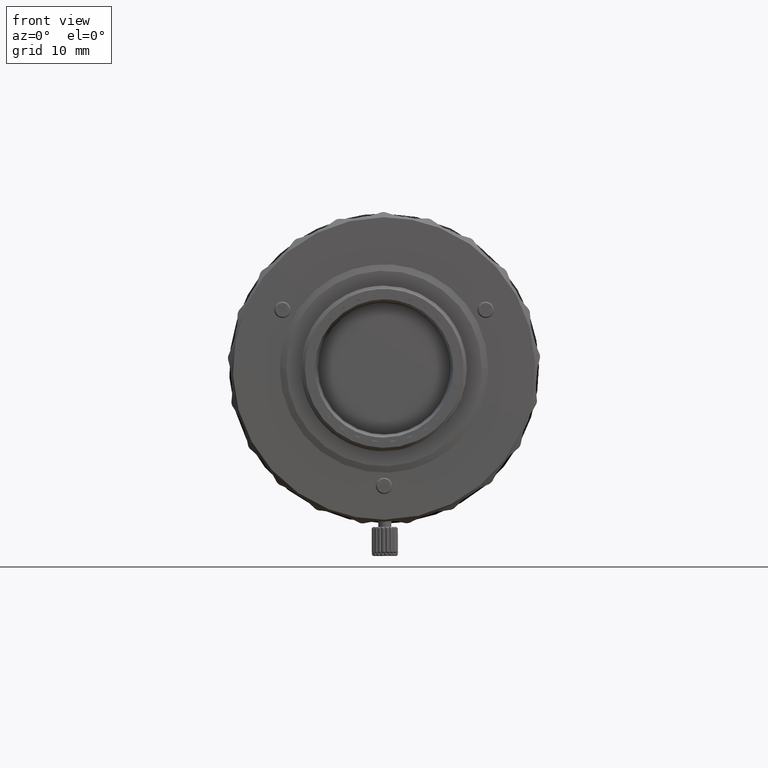
[diagram: clean part render]
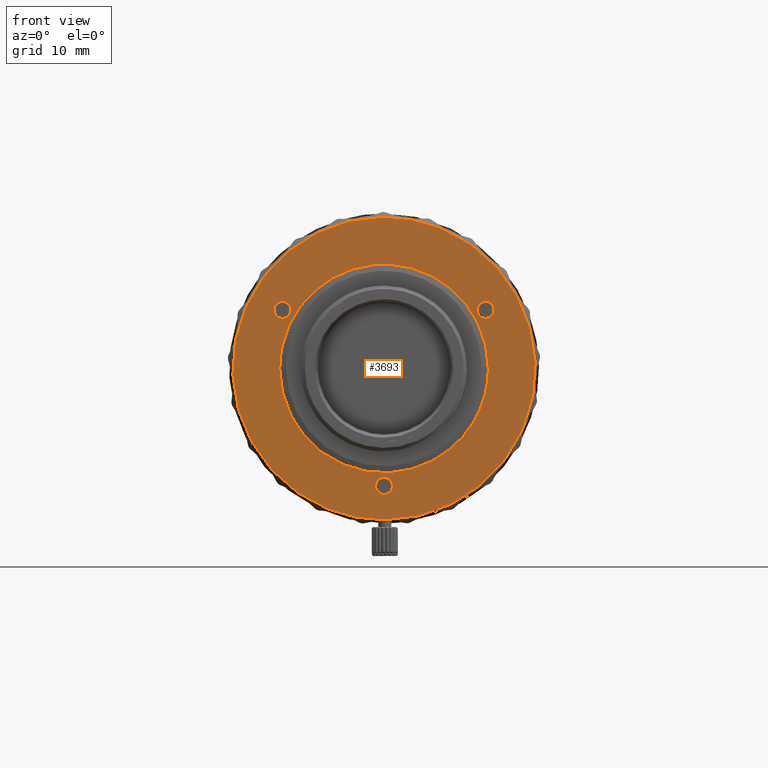
[diagram: same view with one face highlighted and labeled with its STEP entity id]
A machine part, front view. The second image highlights one B-rep face of the part: STEP entity #3693.
In plain terms, the highlighted face is a freeform B-spline surface patch.
Its self-contained STEP definition (entity closure, byte-faithful):
#194 = CARTESIAN_POINT ( 'NONE',  ( -15.58845726276480192, 4.185000000000000497, 7.700000004315920243 ) ) ;
#382 = CARTESIAN_POINT ( 'NONE',  ( 4.835216520487320207E-09, 4.185000000000000497, -19.29999999482794948 ) ) ;
#471 = CARTESIAN_POINT ( 'NONE',  ( 14.15277818605966509, 4.185000000000001386, -18.44581871180172428 ) ) ;
#1276 = CARTESIAN_POINT ( 'NONE',  ( -16.00000000000000000, 4.185000000000000497, 9.372583003554694869 ) ) ;
#1598 = CARTESIAN_POINT ( 'NONE',  ( 4.401863451953290030E-09, 4.185000000000000497, -16.69999999851004802 ) ) ;
#2475 = CARTESIAN_POINT ( 'NONE',  ( 3.281651303531619642E-09, 4.184999999999994280, 16.00000000000000000 ) ) ;
#2510 = CARTESIAN_POINT ( 'NONE',  ( -22.45774806659916223, 4.185000000000000497, -6.016552919795906895 ) ) ;
#2880 = CARTESIAN_POINT ( 'NONE',  ( 16.00000000384469701, 4.184999999999988063, 9.372582996991393856 ) ) ;
#2911 = CARTESIAN_POINT ( 'NONE',  ( -11.62568062406474034, 4.185000000000001386, 20.13437130025090127 ) ) ;
#3014 = CARTESIAN_POINT ( 'NONE',  ( 16.34997963703881751, 4.185000000000000497, 7.700000000000000178 ) ) ;
#3588 = EDGE_LOOP ( 'NONE', ( #25069, #4205 ) ) ;
#3693 = ADVANCED_FACE ( 'NONE', ( #29678, #29268, #61553, #74169, #66849 ), #80915, .F. ) ;
#3808 = EDGE_CURVE ( 'NONE', #17836, #64542, #6191, .T. ) ;
#4001 = CARTESIAN_POINT ( 'NONE',  ( 20.85245753667071611, 4.185000000000001386, 10.28223584680454472 ) ) ;
#4143 = CARTESIAN_POINT ( 'NONE',  ( -20.85245752344366466, 4.185000000000001386, 10.28223580147236760 ) ) ;
#4205 = ORIENTED_EDGE ( 'NONE', *, *, #13009, .F. ) ;
#4360 = CARTESIAN_POINT ( 'NONE',  ( 1.299999999843812315, 4.185000000000000497, -17.23847763069454686 ) ) ;
#4410 = CARTESIAN_POINT ( 'NONE',  ( 10.28223580147237648, 4.185000000000001386, 20.85245752344366110 ) ) ;
#4480 = CARTESIAN_POINT ( 'NONE',  ( -15.58845726319815128, 4.185000000000000497, 10.30000000063380128 ) ) ;
#4894 =( BOUNDED_CURVE ( )  B_SPLINE_CURVE ( 3, ( #10407, #3014, #16521, #29189, #59442, #27964, #28366 ),
 .UNSPECIFIED., .F., .T. ) 
 B_SPLINE_CURVE_WITH_KNOTS ( ( 4, 3, 4 ),
 ( -3.141592653589795336, -1.570796326794897668, 0.000000000000000000 ),
 .UNSPECIFIED. ) 
 CURVE ( )  GEOMETRIC_REPRESENTATION_ITEM ( )  RATIONAL_B_SPLINE_CURVE ( ( 1.000000000000000000, 0.8047378540760217192, 0.8047378540760217192, 1.000000000000000000, 0.8047378540760217192, 0.8047378540760217192, 1.000000000000000000 ) ) 
 REPRESENTATION_ITEM ( '' )  );
#5331 = VERTEX_POINT ( 'NONE', #44253 ) ;
#6191 =( BOUNDED_CURVE ( )  B_SPLINE_CURVE ( 3, ( #7564, #43533, #32468, #194 ),
 .UNSPECIFIED., .F., .T. ) 
 B_SPLINE_CURVE_WITH_KNOTS ( ( 4, 4 ),
 ( -3.141592653589795336, 0.000000000000000000 ),
 .UNSPECIFIED. ) 
 CURVE ( )  GEOMETRIC_REPRESENTATION_ITEM ( )  RATIONAL_B_SPLINE_CURVE ( ( 1.000000000000000000, 0.3333333335299315525, 0.3333333335299315525, 1.000000000000000000 ) ) 
 REPRESENTATION_ITEM ( '' )  );
#6640 = CARTESIAN_POINT ( 'NONE',  ( -4.062566728592469547E-09, 4.185000000000000497, -23.19999999999550155 ) ) ;
#7208 = ORIENTED_EDGE ( 'NONE', *, *, #3808, .F. ) ;
#7564 = CARTESIAN_POINT ( 'NONE',  ( -15.58845726319815128, 4.185000000000000497, 10.30000000063380128 ) ) ;
#8472 =( BOUNDED_CURVE ( )  B_SPLINE_CURVE ( 3, ( #62874, #18338, #68173, #37114 ),
 .UNSPECIFIED., .F., .T. ) 
 B_SPLINE_CURVE_WITH_KNOTS ( ( 4, 4 ),
 ( -3.141592653589795336, 0.000000000000000000 ),
 .UNSPECIFIED. ) 
 CURVE ( )  GEOMETRIC_REPRESENTATION_ITEM ( )  RATIONAL_B_SPLINE_CURVE ( ( 1.000000000000000000, 0.3333333335299315525, 0.3333333335299315525, 1.000000000000000000 ) ) 
 REPRESENTATION_ITEM ( '' )  );
#8584 = EDGE_CURVE ( 'NONE', #64542, #17836, #51196, .T. ) ;
#8965 = EDGE_CURVE ( 'NONE', #19141, #14673, #8472, .T. ) ;
#9065 = CARTESIAN_POINT ( 'NONE',  ( -14.15277817592407850, 4.185000000000000497, -18.44581864794639259 ) ) ;
#9477 = CARTESIAN_POINT ( 'NONE',  ( -6.016552919795881138, 4.185000000000001386, 22.45774806659917644 ) ) ;
#10157 = CARTESIAN_POINT ( 'NONE',  ( 17.47943724034298185, 4.185000000000001386, 15.33031739406269622 ) ) ;
#10299 = CARTESIAN_POINT ( 'NONE',  ( -3.035638004461001405, 4.185000000000001386, 23.05068890024393014 ) ) ;
#10407 = CARTESIAN_POINT ( 'NONE',  ( 15.58845726862030112, 4.185000000000000497, 7.699999993170631107 ) ) ;
#11337 = CARTESIAN_POINT ( 'NONE',  ( -15.99999999425323693, 4.185000000000000497, -31.99999998400000933 ) ) ;
#11973 = ORIENTED_EDGE ( 'NONE', *, *, #41886, .F. ) ;
#13009 = EDGE_CURVE ( 'NONE', #14673, #19141, #4894, .T. ) ;
#13960 = CARTESIAN_POINT ( 'NONE',  ( 6.016552919795881138, 4.184999999999999609, -22.45774806659917644 ) ) ;
#14673 = VERTEX_POINT ( 'NONE', #79149 ) ;
#15146 = VERTEX_POINT ( 'NONE', #36951 ) ;
#15153 = CARTESIAN_POINT ( 'NONE',  ( 16.00000000289309909, 4.185000000000000497, -6.738708496839890188E-09 ) ) ;
#15275 = CARTESIAN_POINT ( 'NONE',  ( -14.28845726784381220, 4.185000000000000497, 8.238477631227816289 ) ) ;
#15998 = CARTESIAN_POINT ( 'NONE',  ( -1.519657213573825993, 4.185000000000000497, -23.19999996353228511 ) ) ;
#16417 = CARTESIAN_POINT ( 'NONE',  ( -22.01555274446258181, 4.185000000000001386, -7.474275443353866066 ) ) ;
#16485 =( BOUNDED_CURVE ( )  B_SPLINE_CURVE ( 3, ( #23592, #11337, #36223, #68490 ),
 .UNSPECIFIED., .F., .T. ) 
 B_SPLINE_CURVE_WITH_KNOTS ( ( 4, 4 ),
 ( -3.141592653589795336, 0.000000000000000000 ),
 .UNSPECIFIED. ) 
 CURVE ( )  GEOMETRIC_REPRESENTATION_ITEM ( )  RATIONAL_B_SPLINE_CURVE ( ( 1.000000000000000000, 0.3333333335299309419, 0.3333333335299309419, 1.000000000000000000 ) ) 
 REPRESENTATION_ITEM ( '' )  );
#16521 = CARTESIAN_POINT ( 'NONE',  ( 16.88845726815619130, 4.185000000000000497, 8.238477631227816289 ) ) ;
#17836 = VERTEX_POINT ( 'NONE', #4480 ) ;
#18223 = CARTESIAN_POINT ( 'NONE',  ( -32.07209084000000132, 4.185000000000000497, 8.593690839999998943 ) ) ;
#18338 = CARTESIAN_POINT ( 'NONE',  ( 12.98845726900019848, 4.185000000000000497, 10.29999999893345830 ) ) ;
#19141 = VERTEX_POINT ( 'NONE', #80006 ) ;
#19701 = CARTESIAN_POINT ( 'NONE',  ( 10.28223584680458202, 4.185000000000001386, -20.85245753667069124 ) ) ;
#20103 = CARTESIAN_POINT ( 'NONE',  ( 7.474275443353828763, 4.185000000000001386, -22.01555274446260313 ) ) ;
#20491 = CARTESIAN_POINT ( 'NONE',  ( 15.33031740480544336, 4.184999999999998721, 17.47943722123569188 ) ) ;
#21410 = CARTESIAN_POINT ( 'NONE',  ( -15.58845726276480192, 4.185000000000000497, 7.700000004315920243 ) ) ;
#22538 = CARTESIAN_POINT ( 'NONE',  ( -7.474275443353826986, 4.185000000000001386, 22.01555274446259958 ) ) ;
#22755 = CARTESIAN_POINT ( 'NONE',  ( 4.401863451953290030E-09, 4.185000000000000497, -16.69999999851004802 ) ) ;
#22952 = CARTESIAN_POINT ( 'NONE',  ( -10.28223580147238003, 4.185000000000001386, -20.85245752344365755 ) ) ;
#23343 = EDGE_CURVE ( 'NONE', #5331, #33329, #75503, .T. ) ;
#23589 = CARTESIAN_POINT ( 'NONE',  ( 1.300000000156193103, 4.185000000000000497, -18.76152236877218726 ) ) ;
#23592 = CARTESIAN_POINT ( 'NONE',  ( -16.00000000289309909, 4.185000000000000497, 1.405374722224582122E-09 ) ) ;
#23861 = ORIENTED_EDGE ( 'NONE', *, *, #78978, .F. ) ;
#25069 = ORIENTED_EDGE ( 'NONE', *, *, #8965, .F. ) ;
#25433 = CARTESIAN_POINT ( 'NONE',  ( 15.33031739406270333, 4.185000000000001386, -17.47943724034298540 ) ) ;
#26226 = CARTESIAN_POINT ( 'NONE',  ( 23.05068891992059932, 4.185000000000000497, -3.035638010721579683 ) ) ;
#27450 = CARTESIAN_POINT ( 'NONE',  ( -17.47943722123570254, 4.185000000000000497, 15.33031740480544158 ) ) ;
#27815 = CARTESIAN_POINT ( 'NONE',  ( -16.00000000289309909, 4.185000000000000497, 1.405374722224582122E-09 ) ) ;
#27964 = CARTESIAN_POINT ( 'NONE',  ( 16.34997963650555164, 4.185000000000000497, 10.30000000031238194 ) ) ;
#28124 = CARTESIAN_POINT ( 'NONE',  ( -3.670767244599734914E-09, 4.185000000000000497, 23.19999999999550155 ) ) ;
#28260 = CARTESIAN_POINT ( 'NONE',  ( -23.19999998221954840, 4.185000000000001386, -1.519657195961086060 ) ) ;
#28366 = CARTESIAN_POINT ( 'NONE',  ( 15.58845726036080137, 4.185000000000000497, 10.30000000304378105 ) ) ;
#28475 = CARTESIAN_POINT ( 'NONE',  ( 1.300000000000002487, 4.185000000000000497, -17.99999999973336529 ) ) ;
#28942 = CARTESIAN_POINT ( 'NONE',  ( 23.05068890024394435, 4.185000000000001386, 3.035638004460969430 ) ) ;
#29086 = CARTESIAN_POINT ( 'NONE',  ( -20.85245753667071256, 4.185000000000002274, -10.28223584680454827 ) ) ;
#29189 = CARTESIAN_POINT ( 'NONE',  ( 16.88845726799999980, 4.185000000000000497, 9.000000000266632938 ) ) ;
#29268 = FACE_BOUND ( 'NONE', #3588, .T. ) ;
#29678 = FACE_BOUND ( 'NONE', #61551, .T. ) ;
#29993 = CARTESIAN_POINT ( 'NONE',  ( -15.58845726319815128, 4.185000000000000497, 10.30000000063380128 ) ) ;
#30890 = CARTESIAN_POINT ( 'NONE',  ( 32.07209084000000132, 4.185000000000000497, -8.593690839999998943 ) ) ;
#31237 = ORIENTED_EDGE ( 'NONE', *, *, #75333, .T. ) ;
#31908 = CARTESIAN_POINT ( 'NONE',  ( 4.835216520487320207E-09, 4.185000000000000497, -19.29999999482794948 ) ) ;
#32468 = CARTESIAN_POINT ( 'NONE',  ( -18.18845726670000218, 4.185000000000000497, 7.700000000466927119 ) ) ;
#32766 = CARTESIAN_POINT ( 'NONE',  ( -3.670767244599734914E-09, 4.185000000000000497, 23.19999999999550155 ) ) ;
#33329 = VERTEX_POINT ( 'NONE', #78768 ) ;
#33365 = VERTEX_POINT ( 'NONE', #61232 ) ;
#33963 = CARTESIAN_POINT ( 'NONE',  ( -14.15277818605967042, 4.185000000000002274, 18.44581871180172428 ) ) ;
#34361 = CARTESIAN_POINT ( 'NONE',  ( -10.28223584680458202, 4.185000000000002274, 20.85245753667069479 ) ) ;
#34633 = CARTESIAN_POINT ( 'NONE',  ( 6.016552982209660172, 4.185000000000002274, 22.45774806891912334 ) ) ;
#35046 = CARTESIAN_POINT ( 'NONE',  ( 14.15277817592407317, 4.185000000000001386, 18.44581864794639969 ) ) ;
#35194 = CARTESIAN_POINT ( 'NONE',  ( -20.13437132979497335, 4.185000000000002274, 11.62568060655269164 ) ) ;
#35466 = CARTESIAN_POINT ( 'NONE',  ( 7.474275443389917228, 4.185000000000001386, 22.01555277309056180 ) ) ;
#36223 = CARTESIAN_POINT ( 'NONE',  ( 15.99999998687339620, 4.184999999999988063, -31.99999998768993237 ) ) ;
#36951 = CARTESIAN_POINT ( 'NONE',  ( -3.670767244599734914E-09, 4.185000000000000497, 23.19999999999550155 ) ) ;
#37003 = CARTESIAN_POINT ( 'NONE',  ( -8.593690839999998943, 4.185000000000000497, -32.07209084000000132 ) ) ;
#37114 = CARTESIAN_POINT ( 'NONE',  ( 15.58845726862030112, 4.185000000000000497, 7.699999993170631107 ) ) ;
#38065 = CARTESIAN_POINT ( 'NONE',  ( 1.519657195961021445, 4.185000000000000497, -23.19999998221954840 ) ) ;
#38459 = CARTESIAN_POINT ( 'NONE',  ( 20.85245752344366110, 4.185000000000001386, -10.28223580147236582 ) ) ;
#40510 = CARTESIAN_POINT ( 'NONE',  ( -18.44581871180170651, 4.185000000000001386, -14.15277818605968108 ) ) ;
#41178 = CARTESIAN_POINT ( 'NONE',  ( 23.19999998221954485, 4.184999999999999609, 1.519657195961085838 ) ) ;
#41325 = CARTESIAN_POINT ( 'NONE',  ( -23.20000001775333232, 4.185000000000001386, 1.519657182269284812 ) ) ;
#41742 = B_SPLINE_CURVE_WITH_KNOTS ( 'NONE', 3,
 ( #6640, #38065, #50742, #13960, #20103, #19701, #56493, #471, #25433, #63028, #44610, #69519, #38459, #63414, #57282, #26226, #69919, #41178, #28942, #53877, #47311, #4001, #60015, #66120, #10157, #20491, #35046, #78765, #4410, #35466, #34633, #47732, #59608, #28124 ),
 .UNSPECIFIED., .F., .F.,
 ( 4, 2, 2, 2, 2, 2, 2, 2, 2, 2, 2, 2, 2, 2, 2, 2, 4 ),
 ( 0.000000000000000000, 0.1963495408493622918, 0.3926990816987245836, 0.5890486225480868754, 0.7853981633974491672, 0.9817477042468112369, 1.178097245096173529, 1.374446785945535376, 1.570796326794897668, 1.767145867644259960, 1.963495408493621808, 2.159844949342983877, 2.356194490192346169, 2.552544031041708461, 2.748893571891070753, 2.945243112740433045, 3.141592653589795336 ),
 .UNSPECIFIED. ) ;
#41886 = EDGE_CURVE ( 'NONE', #33329, #5331, #16485, .T. ) ;
#43533 = CARTESIAN_POINT ( 'NONE',  ( -18.18845726699980148, 4.185000000000000497, 10.29999999893345830 ) ) ;
#44049 = CARTESIAN_POINT ( 'NONE',  ( -14.28845726815619521, 4.185000000000000497, 9.761522369305451363 ) ) ;
#44253 = CARTESIAN_POINT ( 'NONE',  ( 16.00000000289309909, 4.185000000000000497, -6.738708496839890188E-09 ) ) ;
#44610 = CARTESIAN_POINT ( 'NONE',  ( 18.44581864794641746, 4.185000000000001386, -14.15277817592404119 ) ) ;
#45341 = EDGE_LOOP ( 'NONE', ( #23861, #76442 ) ) ;
#46340 = ORIENTED_EDGE ( 'NONE', *, *, #73334, .T. ) ;
#47084 =( BOUNDED_CURVE ( )  B_SPLINE_CURVE ( 3, ( #1598, #80898, #75958, #382 ),
 .UNSPECIFIED., .F., .T. ) 
 B_SPLINE_CURVE_WITH_KNOTS ( ( 4, 4 ),
 ( -3.141592653589795336, 0.000000000000000000 ),
 .UNSPECIFIED. ) 
 CURVE ( )  GEOMETRIC_REPRESENTATION_ITEM ( )  RATIONAL_B_SPLINE_CURVE ( ( 1.000000000000000000, 0.3333333335299309419, 0.3333333335299309419, 1.000000000000000000 ) ) 
 REPRESENTATION_ITEM ( '' )  );
#47311 = CARTESIAN_POINT ( 'NONE',  ( 22.01555274446258537, 4.185000000000000497, 7.474275443353866066 ) ) ;
#47460 = CARTESIAN_POINT ( 'NONE',  ( -15.33031739406270511, 4.184999999999999609, 17.47943724034298896 ) ) ;
#47732 = CARTESIAN_POINT ( 'NONE',  ( 3.035638010721598334, 4.185000000000000497, 23.05068891992059577 ) ) ;
#49668 = CARTESIAN_POINT ( 'NONE',  ( 8.593690839999998943, 4.185000000000000497, 32.07209084000000132 ) ) ;
#50742 = CARTESIAN_POINT ( 'NONE',  ( 3.035638004461001405, 4.185000000000001386, -23.05068890024393014 ) ) ;
#51196 =( BOUNDED_CURVE ( )  B_SPLINE_CURVE ( 3, ( #21410, #71229, #15275, #78173, #44049, #60246, #29993 ),
 .UNSPECIFIED., .F., .T. ) 
 B_SPLINE_CURVE_WITH_KNOTS ( ( 4, 3, 4 ),
 ( -3.141592653589795336, -1.570796326794897668, 0.000000000000000000 ),
 .UNSPECIFIED. ) 
 CURVE ( )  GEOMETRIC_REPRESENTATION_ITEM ( )  RATIONAL_B_SPLINE_CURVE ( ( 1.000000000000000000, 0.8047378540760217192, 0.8047378540760217192, 1.000000000000000000, 0.8047378540760217192, 0.8047378540760217192, 1.000000000000000000 ) ) 
 REPRESENTATION_ITEM ( '' )  );
#51540 = CARTESIAN_POINT ( 'NONE',  ( -9.372583000273046139, 4.184999999999997833, 16.00000000192235206 ) ) ;
#52364 = CARTESIAN_POINT ( 'NONE',  ( -4.062566728592469547E-09, 4.185000000000000497, -23.19999999999550155 ) ) ;
#52757 = CARTESIAN_POINT ( 'NONE',  ( -6.016552982209660172, 4.185000000000002274, -22.45774806891912334 ) ) ;
#53173 = CARTESIAN_POINT ( 'NONE',  ( -23.05068890024395145, 4.185000000000002274, -3.035638004460971207 ) ) ;
#53877 = CARTESIAN_POINT ( 'NONE',  ( 22.45774806659916223, 4.185000000000000497, 6.016552919795906895 ) ) ;
#54023 = CARTESIAN_POINT ( 'NONE',  ( -11.62568060655265434, 4.185000000000000497, -20.13437132979498045 ) ) ;
#54639 = CARTESIAN_POINT ( 'NONE',  ( 0.7615223690388204236, 4.185000000000000497, -19.30000000000000426 ) ) ;
#54813 = B_SPLINE_CURVE_WITH_KNOTS ( 'NONE', 3,
 ( #32766, #63844, #10299, #9477, #22538, #34361, #2911, #33963, #47460, #27450, #65047, #35194, #4143, #60154, #65848, #59746, #41325, #28260, #53173, #2510, #16417, #29086, #58920, #40510, #72356, #66260, #9065, #54023, #22952, #78915, #52757, #58519, #15998, #52364 ),
 .UNSPECIFIED., .F., .F.,
 ( 4, 2, 2, 2, 2, 2, 2, 2, 2, 2, 2, 2, 2, 2, 2, 2, 4 ),
 ( 0.000000000000000000, 0.1963495408493622918, 0.3926990816987245836, 0.5890486225480868754, 0.7853981633974491672, 0.9817477042468112369, 1.178097245096173529, 1.374446785945535376, 1.570796326794897446, 1.767145867644259516, 1.963495408493621364, 2.159844949342983877, 2.356194490192346169, 2.552544031041708461, 2.748893571891070753, 2.945243112740433045, 3.141592653589795336 ),
 .UNSPECIFIED. ) ;
#55041 = CARTESIAN_POINT ( 'NONE',  ( 0.7615223685055523273, 4.185000000000000497, -16.69999999968761273 ) ) ;
#56493 = CARTESIAN_POINT ( 'NONE',  ( 11.62568062406474390, 4.185000000000001386, -20.13437130025090127 ) ) ;
#56889 = CARTESIAN_POINT ( 'NONE',  ( -4.062566728592469547E-09, 4.185000000000000497, -23.19999999999550155 ) ) ;
#57282 = CARTESIAN_POINT ( 'NONE',  ( 22.45774806891912334, 4.185000000000002274, -6.016552982209676159 ) ) ;
#58519 = CARTESIAN_POINT ( 'NONE',  ( -3.035638010721597446, 4.185000000000000497, -23.05068891992059577 ) ) ;
#58920 = CARTESIAN_POINT ( 'NONE',  ( -20.13437130025091548, 4.185000000000001386, -11.62568062406472791 ) ) ;
#59285 = ORIENTED_EDGE ( 'NONE', *, *, #23343, .F. ) ;
#59442 = CARTESIAN_POINT ( 'NONE',  ( 16.88845726784380830, 4.185000000000000497, 9.761522369305451363 ) ) ;
#59608 = CARTESIAN_POINT ( 'NONE',  ( 1.519657213573829324, 4.185000000000000497, 23.19999996353228155 ) ) ;
#59746 = CARTESIAN_POINT ( 'NONE',  ( -23.05068891992060287, 4.185000000000000497, 3.035638010721575686 ) ) ;
#59837 = EDGE_CURVE ( 'NONE', #73963, #33365, #68488, .T. ) ;
#60015 = CARTESIAN_POINT ( 'NONE',  ( 20.13437130025091548, 4.185000000000001386, 11.62568062406471903 ) ) ;
#60154 = CARTESIAN_POINT ( 'NONE',  ( -22.01555277309055469, 4.185000000000000497, 7.474275443389930551 ) ) ;
#60246 = CARTESIAN_POINT ( 'NONE',  ( -14.82693489949445542, 4.185000000000000497, 10.30000000031238194 ) ) ;
#61232 = CARTESIAN_POINT ( 'NONE',  ( 4.401863451953290030E-09, 4.185000000000000497, -16.69999999851004802 ) ) ;
#61551 = EDGE_LOOP ( 'NONE', ( #59285, #11973 ) ) ;
#61553 = FACE_BOUND ( 'NONE', #45341, .T. ) ;
#62874 = CARTESIAN_POINT ( 'NONE',  ( 15.58845726036080137, 4.185000000000000497, 10.30000000304378105 ) ) ;
#63028 = CARTESIAN_POINT ( 'NONE',  ( 17.47943722123569543, 4.185000000000000497, -15.33031740480544691 ) ) ;
#63414 = CARTESIAN_POINT ( 'NONE',  ( 22.01555277309054759, 4.185000000000000497, -7.474275443389934104 ) ) ;
#63844 = CARTESIAN_POINT ( 'NONE',  ( -1.519657195961024110, 4.184999999999998721, 23.19999998221954485 ) ) ;
#64542 = VERTEX_POINT ( 'NONE', #78534 ) ;
#65047 = CARTESIAN_POINT ( 'NONE',  ( -18.44581864794642811, 4.185000000000001386, 14.15277817592403942 ) ) ;
#65283 = ORIENTED_EDGE ( 'NONE', *, *, #8584, .F. ) ;
#65848 = CARTESIAN_POINT ( 'NONE',  ( -22.45774806891910913, 4.185000000000000497, 6.016552982209677936 ) ) ;
#66120 = CARTESIAN_POINT ( 'NONE',  ( 18.44581871180170651, 4.185000000000000497, 14.15277818605968640 ) ) ;
#66260 = CARTESIAN_POINT ( 'NONE',  ( -15.33031740480544336, 4.184999999999998721, -17.47943722123569543 ) ) ;
#66849 = FACE_OUTER_BOUND ( 'NONE', #75397, .T. ) ;
#67278 = CARTESIAN_POINT ( 'NONE',  ( 4.835216520487320207E-09, 4.185000000000000497, -19.29999999482794948 ) ) ;
#68173 = CARTESIAN_POINT ( 'NONE',  ( 12.98845726930000488, 4.185000000000000497, 7.700000000466927119 ) ) ;
#68488 =( BOUNDED_CURVE ( )  B_SPLINE_CURVE ( 3, ( #67278, #54639, #23589, #28475, #4360, #55041, #22755 ),
 .UNSPECIFIED., .F., .T. ) 
 B_SPLINE_CURVE_WITH_KNOTS ( ( 4, 3, 4 ),
 ( -3.141592653589795336, -1.570796326794897668, 0.000000000000000000 ),
 .UNSPECIFIED. ) 
 CURVE ( )  GEOMETRIC_REPRESENTATION_ITEM ( )  RATIONAL_B_SPLINE_CURVE ( ( 1.000000000000000000, 0.8047378540760217192, 0.8047378540760217192, 1.000000000000000000, 0.8047378540760217192, 0.8047378540760217192, 1.000000000000000000 ) ) 
 REPRESENTATION_ITEM ( '' )  );
#68490 = CARTESIAN_POINT ( 'NONE',  ( 16.00000000289309909, 4.185000000000000497, -6.738708496839890188E-09 ) ) ;
#69132 = EDGE_LOOP ( 'NONE', ( #7208, #65283 ) ) ;
#69519 = CARTESIAN_POINT ( 'NONE',  ( 20.13437132979496269, 4.185000000000000497, -11.62568060655269520 ) ) ;
#69919 = CARTESIAN_POINT ( 'NONE',  ( 23.20000001775333587, 4.185000000000001386, -1.519657182269288587 ) ) ;
#71095 = CARTESIAN_POINT ( 'NONE',  ( 9.372583006836345376, 4.184999999999990727, 15.99999999807765327 ) ) ;
#71229 = CARTESIAN_POINT ( 'NONE',  ( -14.82693489896118244, 4.185000000000000497, 7.700000000000000178 ) ) ;
#72356 = CARTESIAN_POINT ( 'NONE',  ( -17.47943724034298185, 4.184999999999999609, -15.33031739406270511 ) ) ;
#73334 = EDGE_CURVE ( 'NONE', #15146, #75237, #54813, .T. ) ;
#73963 = VERTEX_POINT ( 'NONE', #31908 ) ;
#74169 = FACE_BOUND ( 'NONE', #69132, .T. ) ;
#75237 = VERTEX_POINT ( 'NONE', #56889 ) ;
#75333 = EDGE_CURVE ( 'NONE', #75237, #15146, #41742, .T. ) ;
#75397 = EDGE_LOOP ( 'NONE', ( #31237, #46340 ) ) ;
#75503 =( BOUNDED_CURVE ( )  B_SPLINE_CURVE ( 3, ( #15153, #2880, #71095, #2475, #51540, #1276, #27815 ),
 .UNSPECIFIED., .F., .T. ) 
 B_SPLINE_CURVE_WITH_KNOTS ( ( 4, 3, 4 ),
 ( -3.141592653589795336, -1.570796326794897668, 0.000000000000000000 ),
 .UNSPECIFIED. ) 
 CURVE ( )  GEOMETRIC_REPRESENTATION_ITEM ( )  RATIONAL_B_SPLINE_CURVE ( ( 1.000000000000000000, 0.8047378540760217192, 0.8047378540760217192, 1.000000000000000000, 0.8047378540760217192, 0.8047378540760217192, 1.000000000000000000 ) ) 
 REPRESENTATION_ITEM ( '' )  );
#75958 = CARTESIAN_POINT ( 'NONE',  ( -2.599999998700005754, 4.185000000000000497, -19.29999999953307466 ) ) ;
#76442 = ORIENTED_EDGE ( 'NONE', *, *, #59837, .F. ) ;
#78173 = CARTESIAN_POINT ( 'NONE',  ( -14.28845726800000193, 4.185000000000000497, 9.000000000266632938 ) ) ;
#78534 = CARTESIAN_POINT ( 'NONE',  ( -15.58845726276480192, 4.185000000000000497, 7.700000004315920243 ) ) ;
#78765 = CARTESIAN_POINT ( 'NONE',  ( 11.62568060655265434, 4.185000000000001386, 20.13437132979499111 ) ) ;
#78768 = CARTESIAN_POINT ( 'NONE',  ( -16.00000000289309909, 4.185000000000000497, 1.405374722224582122E-09 ) ) ;
#78915 = CARTESIAN_POINT ( 'NONE',  ( -7.474275443389918117, 4.185000000000001386, -22.01555277309056180 ) ) ;
#78978 = EDGE_CURVE ( 'NONE', #33365, #73963, #47084, .T. ) ;
#79149 = CARTESIAN_POINT ( 'NONE',  ( 15.58845726862030112, 4.185000000000000497, 7.699999993170631107 ) ) ;
#80006 = CARTESIAN_POINT ( 'NONE',  ( 15.58845726036080137, 4.185000000000000497, 10.30000000304378105 ) ) ;
#80898 = CARTESIAN_POINT ( 'NONE',  ( -2.599999998999812156, 4.185000000000000497, -16.70000000106653104 ) ) ;
#80915 = B_SPLINE_SURFACE_WITH_KNOTS ( 'NONE', 1, 1, ( 
 ( #18223, #37003 ),
 ( #49668, #30890 ) ),
 .UNSPECIFIED., .F., .F., .F.,
 ( 2, 2 ),
 ( 2, 2 ),
 ( 0.000000000000000000, 1.000000000000000000 ),
 ( 0.000000000000000000, 1.000000000000000000 ),
 .UNSPECIFIED. ) ;